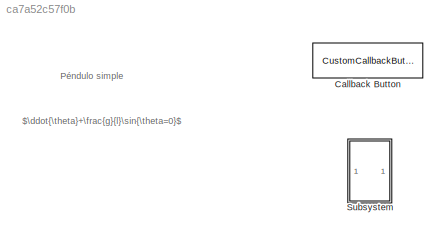
MODEL slx_ca7a52c57f0b
KIND model
CONFIG AbsTol = auto
CONFIG EnableMultiTasking = off
CONFIG FixedStep = 0.01
CONFIG MaxStep = auto
CONFIG MinStep = auto
CONFIG RelTol = 1e-3
CONFIG SampleTimeConstraint = Unconstrained
CONFIG SolverName = ode4
CONFIG StartTime = 0.0
CONFIG StopTime = 15.0
WORKSPACE source: MATLAB code (in-file)
WORKSPACE x0 = -2*pi:0.1:2*pi
BLOCK [CustomCallbackButton] Callback Button
  Configuration = {"components":[{"name":"BackgroundImageComponent","settings":{"image":{"size":[0,0],"src":"default","srcOrientation":"Right"},"position":[0,0,1,1]}},{"name":"ButtonStateComponent","settings":{"buttonType":"momentary","clickFcn":"close all\n\nx = out.theta;\ny = out.theta_dot;\n\nn = length(x(1,:));\n\nplot(x(:,2),y(:,2),'LineWidth',3)\nhold on\n\nfor i=3:n\n    plot(x(:,i),y(:,i),'LineWidth',3)\ne...<+2306ch>
  CustomBackgroundColor = {"color":[0.9568627451,0.9568627451,0.9568627451],"show":true}
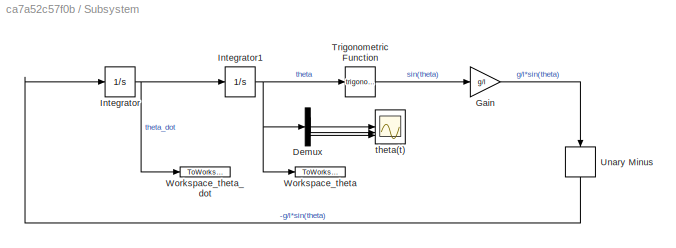
BLOCK [SubSystem] Subsystem
BLOCK [Demux] Subsystem/Demux
  Outputs = 3
BLOCK [Gain] Subsystem/Gain
  Gain = g/l
BLOCK [Integrator] Subsystem/Integrator
BLOCK [Integrator] Subsystem/Integrator1
  InitialCondition = x0
BLOCK [Trigonometry] Subsystem/Trigonometric Function
BLOCK [UnaryMinus] Subsystem/Unary Minus
  NameLocation = left
BLOCK [ToWorkspace] Subsystem/Workspace_theta
  FixptAsFi = on
  MaxDataPoints = inf
  SampleTime = -1
  VariableName = theta
BLOCK [ToWorkspace] Subsystem/Workspace_theta_dot
  FixptAsFi = on
  MaxDataPoints = inf
  SampleTime = -1
  VariableName = theta_dot
BLOCK [Scope] Subsystem/theta(t)
  Floating = off
  NumInputPorts = 3
  ScopeSpecificationString = Simulink.scopes.TimeScopeBlockCfg('CurrentConfiguration', extmgr.ConfigurationSet(extmgr.Configuration('Core','General UI',true),extmgr.Configuration('Core','Source UI',true),extmgr.Configuration('Sources','WiredSimulink',true),extmgr.Configuration('Visuals','Time Domain',true,'SerializedDisplays',{struct('MinYLimReal','-10.94148','MaxYLimReal','4.64148','YLabelReal','','MinYLimMag','0.00000','Max...<+4939ch>
ANNOTATION (root): Péndulo simple
ANNOTATION (root): $\ddot{\theta}+\frac{g}{l}\sin{\theta=0}$
LINE Subsystem/Demux:1 -> Subsystem/theta(t):1
LINE Subsystem/Demux:2 -> Subsystem/theta(t):2
LINE Subsystem/Demux:3 -> Subsystem/theta(t):3
LINE Subsystem/Gain:1 -> Subsystem/Unary Minus:1
NET Subsystem/Integrator1:1 -> Subsystem/Demux:1, Subsystem/Trigonometric Function:1, Subsystem/Workspace_theta:1
NET Subsystem/Integrator:1 -> Subsystem/Integrator1:1, Subsystem/Workspace_theta_dot:1
LINE Subsystem/Trigonometric Function:1 -> Subsystem/Gain:1
LINE Subsystem/Unary Minus:1 -> Subsystem/Integrator:1
note: NET lines group one-source signal fan-out (src -> all destinations, sorted); 1:1 wires keep LINE
